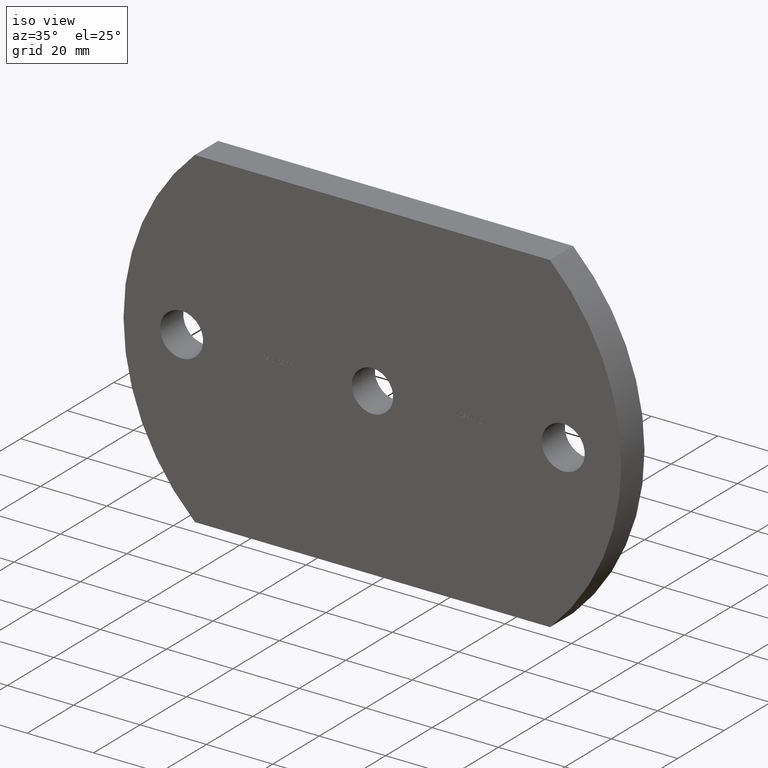
[diagram: clean part render]
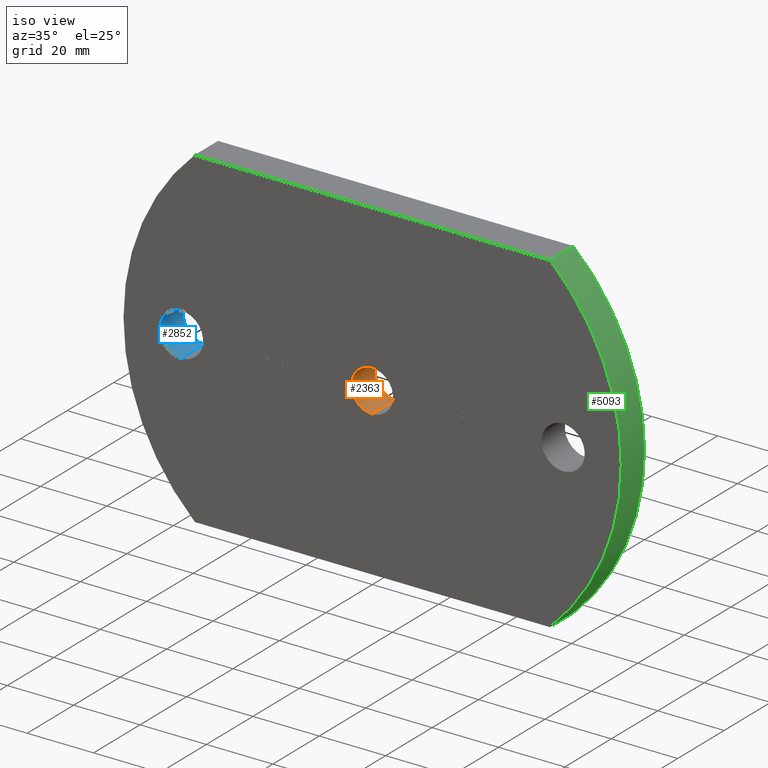
[diagram: same view with three faces highlighted in distinct colors, each labeled with its STEP entity id]
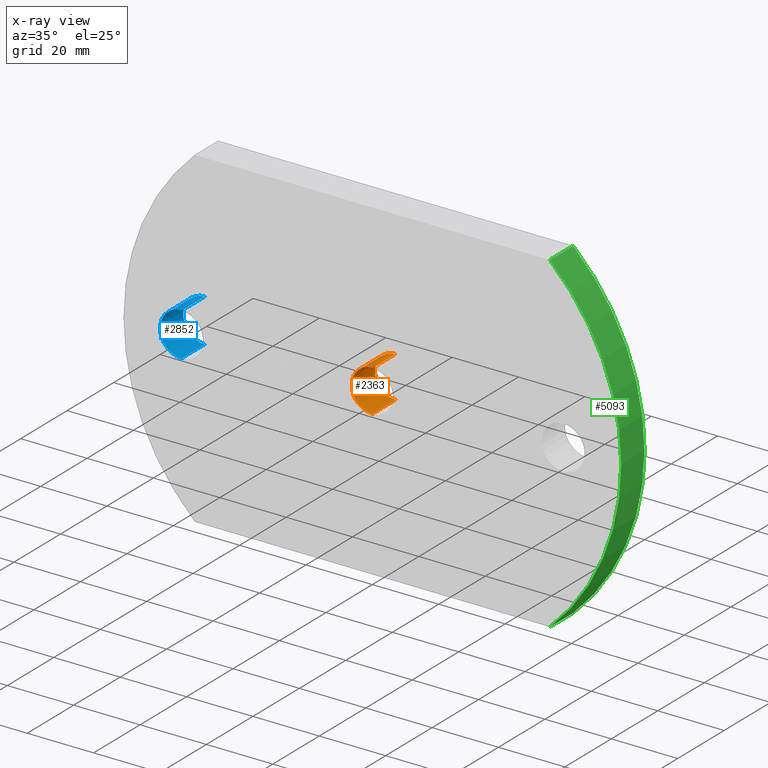
[diagram: x-ray of the same camera — body ghosted, the three highlighted faces saturated]
A machine part, iso view with three faces highlighted in distinct colors.
The next image is the same camera in x-ray (body ghosted, the three faces saturated) — at least one of them is partly hidden behind the body in this view.
Their STEP definitions:

[orange] entity #2363 — the highlighted cylindrical surface (edge-blend (fillet) strip) has radius 6.25 mm, axis along (-0, 1, -0).
#213 = DIRECTION ( 'NONE',  ( -0.0000000000000000000, 1.000000000000000000, -0.0000000000000000000 ) ) ;
#660 = DIRECTION ( 'NONE',  ( 0.0000000000000000000, 0.0000000000000000000, 1.000000000000000000 ) ) ;
#710 = DIRECTION ( 'NONE',  ( -0.0000000000000000000, 1.000000000000000000, -0.0000000000000000000 ) ) ;
#1077 = CARTESIAN_POINT ( 'NONE',  ( 7.654042494670957600E-016, 0.0000000000000000000, -6.250000000000000000 ) ) ;
#1265 = CARTESIAN_POINT ( 'NONE',  ( 0.0000000000000000000, 10.00000000000000000, 6.250000000000000000 ) ) ;
#1492 = EDGE_CURVE ( 'NONE', #9184, #2543, #10283, .T. ) ;
#1494 = AXIS2_PLACEMENT_3D ( 'NONE', #7351, #10624, #660 ) ;
#1595 = FACE_OUTER_BOUND ( 'NONE', #6545, .T. ) ;
#2205 = VECTOR ( 'NONE', #710, 1000.000000000000000 ) ;
#2363 = ADVANCED_FACE ( 'NONE', ( #1595 ), #4090, .F. ) ;
#2543 = VERTEX_POINT ( 'NONE', #6031 ) ;
#2605 = ORIENTED_EDGE ( 'NONE', *, *, #1492, .T. ) ;
#3145 = DIRECTION ( 'NONE',  ( -0.0000000000000000000, 1.000000000000000000, -0.0000000000000000000 ) ) ;
#3306 = EDGE_CURVE ( 'NONE', #9746, #7588, #5079, .T. ) ;
#3492 = ORIENTED_EDGE ( 'NONE', *, *, #3306, .F. ) ;
#3589 = CARTESIAN_POINT ( 'NONE',  ( 0.0000000000000000000, 0.0000000000000000000, 0.0000000000000000000 ) ) ;
#4090 = CYLINDRICAL_SURFACE ( 'NONE', #10548, 6.250000000000000000 ) ;
#4150 = ORIENTED_EDGE ( 'NONE', *, *, #8366, .F. ) ;
#4640 = CARTESIAN_POINT ( 'NONE',  ( 7.654042494670957600E-016, 0.0000000000000000000, -6.250000000000000000 ) ) ;
#5079 = LINE ( 'NONE', #10779, #2205 ) ;
#6031 = CARTESIAN_POINT ( 'NONE',  ( 7.654042494670957600E-016, 10.00000000000000000, -6.250000000000000000 ) ) ;
#6150 = DIRECTION ( 'NONE',  ( 0.0000000000000000000, 0.0000000000000000000, 1.000000000000000000 ) ) ;
#6435 = DIRECTION ( 'NONE',  ( 0.0000000000000000000, 0.0000000000000000000, 1.000000000000000000 ) ) ;
#6516 = CARTESIAN_POINT ( 'NONE',  ( 0.0000000000000000000, 0.0000000000000000000, 0.0000000000000000000 ) ) ;
#6530 = CARTESIAN_POINT ( 'NONE',  ( 0.0000000000000000000, 0.0000000000000000000, 6.250000000000000000 ) ) ;
#6545 = EDGE_LOOP ( 'NONE', ( #4150, #2605, #9591, #3492 ) ) ;
#6901 = AXIS2_PLACEMENT_3D ( 'NONE', #3589, #7826, #6150 ) ;
#7351 = CARTESIAN_POINT ( 'NONE',  ( 0.0000000000000000000, 10.00000000000000000, 0.0000000000000000000 ) ) ;
#7541 = CIRCLE ( 'NONE', #1494, 6.250000000000000000 ) ;
#7588 = VERTEX_POINT ( 'NONE', #1265 ) ;
#7826 = DIRECTION ( 'NONE',  ( 0.0000000000000000000, 1.000000000000000000, 0.0000000000000000000 ) ) ;
#8366 = EDGE_CURVE ( 'NONE', #9184, #9746, #10356, .T. ) ;
#9184 = VERTEX_POINT ( 'NONE', #4640 ) ;
#9247 = VECTOR ( 'NONE', #213, 1000.000000000000000 ) ;
#9591 = ORIENTED_EDGE ( 'NONE', *, *, #10736, .T. ) ;
#9746 = VERTEX_POINT ( 'NONE', #6530 ) ;
#10283 = LINE ( 'NONE', #1077, #9247 ) ;
#10356 = CIRCLE ( 'NONE', #6901, 6.250000000000000000 ) ;
#10548 = AXIS2_PLACEMENT_3D ( 'NONE', #6516, #3145, #6435 ) ;
#10624 = DIRECTION ( 'NONE',  ( 0.0000000000000000000, 1.000000000000000000, 0.0000000000000000000 ) ) ;
#10736 = EDGE_CURVE ( 'NONE', #2543, #7588, #7541, .T. ) ;
#10779 = CARTESIAN_POINT ( 'NONE',  ( 0.0000000000000000000, 0.0000000000000000000, 6.250000000000000000 ) ) ;

[blue] entity #2852 — the highlighted cylindrical surface (edge-blend (fillet) strip) has radius 6.5 mm, axis along (-0, 1, -0).
#52 = DIRECTION ( 'NONE',  ( 0.0000000000000000000, 0.0000000000000000000, 1.000000000000000000 ) ) ;
#864 = CARTESIAN_POINT ( 'NONE',  ( -57.50000000000000000, 10.00000000000000000, 0.0000000000000000000 ) ) ;
#866 = VERTEX_POINT ( 'NONE', #1464 ) ;
#1263 = CIRCLE ( 'NONE', #7397, 6.500000000000000900 ) ;
#1464 = CARTESIAN_POINT ( 'NONE',  ( -57.50000000000000000, 0.0000000000000000000, -6.500000000000000900 ) ) ;
#1601 = DIRECTION ( 'NONE',  ( -0.0000000000000000000, 1.000000000000000000, -0.0000000000000000000 ) ) ;
#1709 = CARTESIAN_POINT ( 'NONE',  ( -57.50000000000000000, 0.0000000000000000000, 0.0000000000000000000 ) ) ;
#1973 = CARTESIAN_POINT ( 'NONE',  ( -57.50000000000000000, 10.00000000000000000, 6.500000000000000900 ) ) ;
#2002 = ORIENTED_EDGE ( 'NONE', *, *, #5953, .F. ) ;
#2257 = ORIENTED_EDGE ( 'NONE', *, *, #10125, .F. ) ;
#2336 = DIRECTION ( 'NONE',  ( 0.0000000000000000000, 0.0000000000000000000, 1.000000000000000000 ) ) ;
#2386 = CARTESIAN_POINT ( 'NONE',  ( -57.50000000000000000, 10.00000000000000000, -6.500000000000000900 ) ) ;
#2642 = CARTESIAN_POINT ( 'NONE',  ( -57.50000000000000000, 0.0000000000000000000, 6.500000000000000900 ) ) ;
#2817 = EDGE_CURVE ( 'NONE', #5200, #5863, #4044, .T. ) ;
#2852 = ADVANCED_FACE ( 'NONE', ( #8001 ), #9444, .F. ) ;
#3711 = AXIS2_PLACEMENT_3D ( 'NONE', #1709, #1601, #52 ) ;
#4044 = CIRCLE ( 'NONE', #5748, 6.500000000000000900 ) ;
#4723 = DIRECTION ( 'NONE',  ( -0.0000000000000000000, 1.000000000000000000, -0.0000000000000000000 ) ) ;
#5200 = VERTEX_POINT ( 'NONE', #2386 ) ;
#5748 = AXIS2_PLACEMENT_3D ( 'NONE', #864, #8314, #7545 ) ;
#5857 = VECTOR ( 'NONE', #8389, 1000.000000000000000 ) ;
#5863 = VERTEX_POINT ( 'NONE', #1973 ) ;
#5953 = EDGE_CURVE ( 'NONE', #6521, #5863, #10367, .T. ) ;
#6331 = CARTESIAN_POINT ( 'NONE',  ( -57.50000000000000000, 0.0000000000000000000, -6.500000000000000900 ) ) ;
#6521 = VERTEX_POINT ( 'NONE', #8735 ) ;
#7357 = DIRECTION ( 'NONE',  ( 0.0000000000000000000, 1.000000000000000000, 0.0000000000000000000 ) ) ;
#7397 = AXIS2_PLACEMENT_3D ( 'NONE', #10739, #7357, #2336 ) ;
#7545 = DIRECTION ( 'NONE',  ( 0.0000000000000000000, 0.0000000000000000000, 1.000000000000000000 ) ) ;
#8001 = FACE_OUTER_BOUND ( 'NONE', #10648, .T. ) ;
#8173 = EDGE_CURVE ( 'NONE', #866, #5200, #9042, .T. ) ;
#8314 = DIRECTION ( 'NONE',  ( 0.0000000000000000000, 1.000000000000000000, 0.0000000000000000000 ) ) ;
#8389 = DIRECTION ( 'NONE',  ( -0.0000000000000000000, 1.000000000000000000, -0.0000000000000000000 ) ) ;
#8735 = CARTESIAN_POINT ( 'NONE',  ( -57.50000000000000000, 0.0000000000000000000, 6.500000000000000900 ) ) ;
#8781 = VECTOR ( 'NONE', #4723, 1000.000000000000000 ) ;
#9042 = LINE ( 'NONE', #6331, #8781 ) ;
#9275 = ORIENTED_EDGE ( 'NONE', *, *, #2817, .T. ) ;
#9444 = CYLINDRICAL_SURFACE ( 'NONE', #3711, 6.500000000000000900 ) ;
#9565 = ORIENTED_EDGE ( 'NONE', *, *, #8173, .T. ) ;
#10125 = EDGE_CURVE ( 'NONE', #866, #6521, #1263, .T. ) ;
#10367 = LINE ( 'NONE', #2642, #5857 ) ;
#10648 = EDGE_LOOP ( 'NONE', ( #2257, #9565, #9275, #2002 ) ) ;
#10739 = CARTESIAN_POINT ( 'NONE',  ( -57.50000000000000000, 0.0000000000000000000, 0.0000000000000000000 ) ) ;

[green] entity #5093 — the highlighted cylindrical surface (partial cylindrical patch) has radius 68.8895 mm, axis along (-0, -1, -0).
#109 = DIRECTION ( 'NONE',  ( -0.0000000000000000000, -1.000000000000000000, -0.0000000000000000000 ) ) ;
#242 = EDGE_CURVE ( 'NONE', #449, #10342, #1147, .T. ) ;
#431 = DIRECTION ( 'NONE',  ( 0.0000000000000000000, 0.0000000000000000000, -1.000000000000000000 ) ) ;
#449 = VERTEX_POINT ( 'NONE', #2947 ) ;
#932 = DIRECTION ( 'NONE',  ( 0.0000000000000000000, 0.0000000000000000000, -1.000000000000000000 ) ) ;
#1147 = CIRCLE ( 'NONE', #3261, 68.88953488372092700 ) ;
#1567 = CYLINDRICAL_SURFACE ( 'NONE', #10625, 68.88953488372092700 ) ;
#1614 = ORIENTED_EDGE ( 'NONE', *, *, #6900, .T. ) ;
#2458 = ORIENTED_EDGE ( 'NONE', *, *, #2882, .F. ) ;
#2854 = LINE ( 'NONE', #3523, #10480 ) ;
#2882 = EDGE_CURVE ( 'NONE', #4876, #10342, #7182, .T. ) ;
#2947 = CARTESIAN_POINT ( 'NONE',  ( 53.49999999999996400, 0.0000000000000000000, 50.00000000000001400 ) ) ;
#3181 = CARTESIAN_POINT ( 'NONE',  ( 53.50000000000000700, 0.0000000000000000000, -49.99999999999998600 ) ) ;
#3261 = AXIS2_PLACEMENT_3D ( 'NONE', #3444, #7571, #932 ) ;
#3444 = CARTESIAN_POINT ( 'NONE',  ( 6.110465116279065100, 0.0000000000000000000, 0.0000000000000000000 ) ) ;
#3523 = CARTESIAN_POINT ( 'NONE',  ( 53.49999999999996400, 10.00000000000000000, 50.00000000000001400 ) ) ;
#4876 = VERTEX_POINT ( 'NONE', #8673 ) ;
#5093 = ADVANCED_FACE ( 'NONE', ( #10637 ), #1567, .T. ) ;
#5463 = CARTESIAN_POINT ( 'NONE',  ( 6.110465116279065100, 10.00000000000000000, 0.0000000000000000000 ) ) ;
#5579 = CARTESIAN_POINT ( 'NONE',  ( 6.110465116279065100, 10.00000000000000000, 0.0000000000000000000 ) ) ;
#5791 = CARTESIAN_POINT ( 'NONE',  ( 53.49999999999996400, 10.00000000000000000, 50.00000000000001400 ) ) ;
#6242 = EDGE_CURVE ( 'NONE', #7439, #4876, #8000, .T. ) ;
#6571 = ORIENTED_EDGE ( 'NONE', *, *, #242, .T. ) ;
#6900 = EDGE_CURVE ( 'NONE', #7439, #449, #2854, .T. ) ;
#6971 = AXIS2_PLACEMENT_3D ( 'NONE', #5463, #7048, #431 ) ;
#7048 = DIRECTION ( 'NONE',  ( 0.0000000000000000000, 1.000000000000000000, -0.0000000000000000000 ) ) ;
#7182 = LINE ( 'NONE', #9290, #7719 ) ;
#7439 = VERTEX_POINT ( 'NONE', #5791 ) ;
#7571 = DIRECTION ( 'NONE',  ( 0.0000000000000000000, 1.000000000000000000, -0.0000000000000000000 ) ) ;
#7719 = VECTOR ( 'NONE', #9254, 1000.000000000000000 ) ;
#8000 = CIRCLE ( 'NONE', #6971, 68.88953488372092700 ) ;
#8146 = DIRECTION ( 'NONE',  ( 0.0000000000000000000, 0.0000000000000000000, -1.000000000000000000 ) ) ;
#8673 = CARTESIAN_POINT ( 'NONE',  ( 53.50000000000000700, 10.00000000000000000, -49.99999999999998600 ) ) ;
#9076 = ORIENTED_EDGE ( 'NONE', *, *, #6242, .F. ) ;
#9249 = EDGE_LOOP ( 'NONE', ( #6571, #2458, #9076, #1614 ) ) ;
#9254 = DIRECTION ( 'NONE',  ( -0.0000000000000000000, -1.000000000000000000, -0.0000000000000000000 ) ) ;
#9290 = CARTESIAN_POINT ( 'NONE',  ( 53.50000000000000700, 10.00000000000000000, -49.99999999999998600 ) ) ;
#9838 = DIRECTION ( 'NONE',  ( -0.0000000000000000000, -1.000000000000000000, -0.0000000000000000000 ) ) ;
#10342 = VERTEX_POINT ( 'NONE', #3181 ) ;
#10480 = VECTOR ( 'NONE', #109, 1000.000000000000000 ) ;
#10625 = AXIS2_PLACEMENT_3D ( 'NONE', #5579, #9838, #8146 ) ;
#10637 = FACE_OUTER_BOUND ( 'NONE', #9249, .T. ) ;